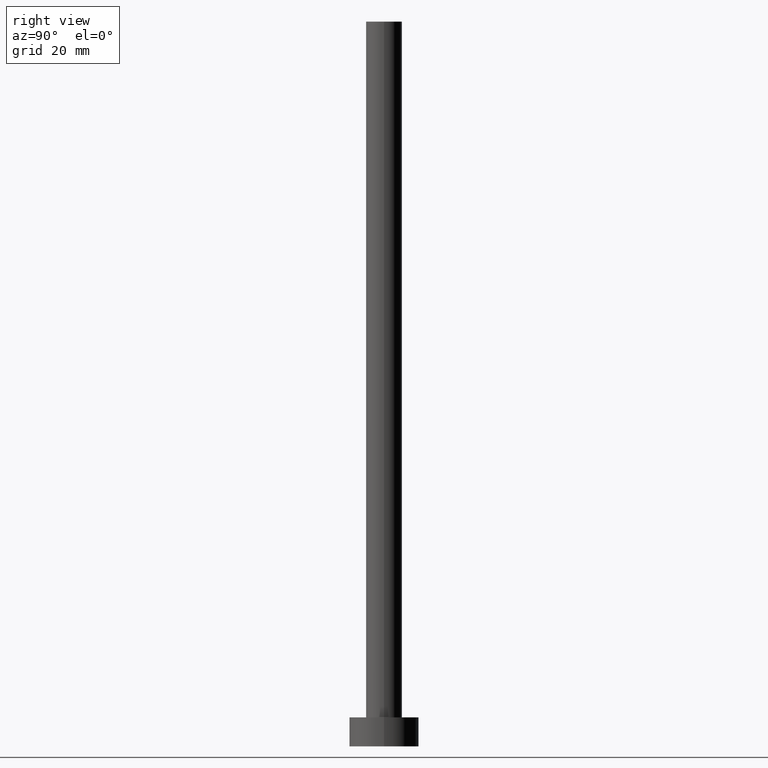
[diagram: clean part render]
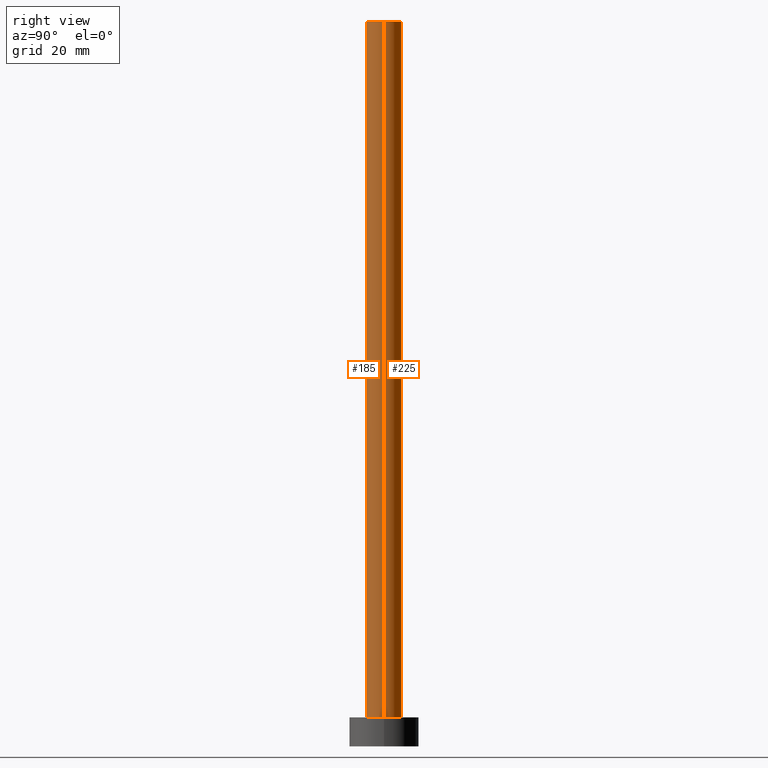
[diagram: same view with one multi-face feature highlighted, each face labeled with its STEP entity id]
A machine part, right view. The highlighted faces form ONE feature: a constant-radius fillet chain: 2 tangent blend faces with common blend radius 3.1 mm. The faces share edges in the B-rep.
Their STEP definitions:
[1] entity #225 (Cylinder):
#2 = CIRCLE ( 'NONE', #139, 3.100000000000000089 ) ;
#8 = LINE ( 'NONE', #80, #126 ) ;
#11 = CARTESIAN_POINT ( 'NONE',  ( 0.000000000000000000, 0.000000000000000000, 125.0000000000000000 ) ) ;
#25 = VECTOR ( 'NONE', #202, 1000.000000000000000 ) ;
#38 = CARTESIAN_POINT ( 'NONE',  ( 0.000000000000000000, 0.000000000000000000, 5.000000000000000000 ) ) ;
#39 = CARTESIAN_POINT ( 'NONE',  ( 3.100000000000000089, 3.796405077356794918E-16, 5.000000000000000000 ) ) ;
#41 = CYLINDRICAL_SURFACE ( 'NONE', #119, 3.100000000000000089 ) ;
#43 = CARTESIAN_POINT ( 'NONE',  ( -3.100000000000000089, 0.000000000000000000, 5.000000000000000000 ) ) ;
#45 = DIRECTION ( 'NONE',  ( 0.000000000000000000, 0.000000000000000000, 1.000000000000000000 ) ) ;
#54 = ORIENTED_EDGE ( 'NONE', *, *, #147, .T. ) ;
#58 = DIRECTION ( 'NONE',  ( -0.000000000000000000, -0.000000000000000000, -1.000000000000000000 ) ) ;
#63 = ORIENTED_EDGE ( 'NONE', *, *, #81, .T. ) ;
#73 = AXIS2_PLACEMENT_3D ( 'NONE', #38, #219, #113 ) ;
#74 = VERTEX_POINT ( 'NONE', #196 ) ;
#80 = CARTESIAN_POINT ( 'NONE',  ( 3.100000000000000089, 3.796405077356794918E-16, 125.0000000000000000 ) ) ;
#81 = EDGE_CURVE ( 'NONE', #87, #197, #234, .T. ) ;
#82 = CARTESIAN_POINT ( 'NONE',  ( -3.100000000000000089, 0.000000000000000000, 125.0000000000000000 ) ) ;
#87 = VERTEX_POINT ( 'NONE', #39 ) ;
#105 = EDGE_LOOP ( 'NONE', ( #110, #54, #63, #149 ) ) ;
#110 = ORIENTED_EDGE ( 'NONE', *, *, #141, .F. ) ;
#113 = DIRECTION ( 'NONE',  ( 1.000000000000000000, 0.000000000000000000, 0.000000000000000000 ) ) ;
#119 = AXIS2_PLACEMENT_3D ( 'NONE', #11, #135, #242 ) ;
#126 = VECTOR ( 'NONE', #58, 1000.000000000000000 ) ;
#135 = DIRECTION ( 'NONE',  ( -0.000000000000000000, -0.000000000000000000, -1.000000000000000000 ) ) ;
#137 = CARTESIAN_POINT ( 'NONE',  ( 0.000000000000000000, 0.000000000000000000, 125.0000000000000000 ) ) ;
#138 = FACE_OUTER_BOUND ( 'NONE', #105, .T. ) ;
#139 = AXIS2_PLACEMENT_3D ( 'NONE', #137, #45, #223 ) ;
#141 = EDGE_CURVE ( 'NONE', #74, #186, #2, .T. ) ;
#147 = EDGE_CURVE ( 'NONE', #74, #87, #8, .T. ) ;
#149 = ORIENTED_EDGE ( 'NONE', *, *, #229, .F. ) ;
#181 = LINE ( 'NONE', #82, #25 ) ;
#186 = VERTEX_POINT ( 'NONE', #221 ) ;
#196 = CARTESIAN_POINT ( 'NONE',  ( 3.100000000000000089, 3.796405077356794918E-16, 125.0000000000000000 ) ) ;
#197 = VERTEX_POINT ( 'NONE', #43 ) ;
#202 = DIRECTION ( 'NONE',  ( -0.000000000000000000, -0.000000000000000000, -1.000000000000000000 ) ) ;
#219 = DIRECTION ( 'NONE',  ( 0.000000000000000000, 0.000000000000000000, 1.000000000000000000 ) ) ;
#221 = CARTESIAN_POINT ( 'NONE',  ( -3.100000000000000089, 0.000000000000000000, 125.0000000000000000 ) ) ;
#223 = DIRECTION ( 'NONE',  ( 1.000000000000000000, 0.000000000000000000, 0.000000000000000000 ) ) ;
#225 = ADVANCED_FACE ( 'NONE', ( #138 ), #41, .T. ) ;
#229 = EDGE_CURVE ( 'NONE', #186, #197, #181, .T. ) ;
#234 = CIRCLE ( 'NONE', #73, 3.100000000000000089 ) ;
#242 = DIRECTION ( 'NONE',  ( -1.000000000000000000, 0.000000000000000000, 0.000000000000000000 ) ) ;
[2] entity #185 (Cylinder):
#8 = LINE ( 'NONE', #80, #126 ) ;
#25 = VECTOR ( 'NONE', #202, 1000.000000000000000 ) ;
#36 = ORIENTED_EDGE ( 'NONE', *, *, #55, .F. ) ;
#39 = CARTESIAN_POINT ( 'NONE',  ( 3.100000000000000089, 3.796405077356794918E-16, 5.000000000000000000 ) ) ;
#43 = CARTESIAN_POINT ( 'NONE',  ( -3.100000000000000089, 0.000000000000000000, 5.000000000000000000 ) ) ;
#51 = ORIENTED_EDGE ( 'NONE', *, *, #229, .T. ) ;
#52 = DIRECTION ( 'NONE',  ( 0.000000000000000000, 0.000000000000000000, 1.000000000000000000 ) ) ;
#55 = EDGE_CURVE ( 'NONE', #186, #74, #203, .T. ) ;
#58 = DIRECTION ( 'NONE',  ( -0.000000000000000000, -0.000000000000000000, -1.000000000000000000 ) ) ;
#68 = DIRECTION ( 'NONE',  ( 1.000000000000000000, 0.000000000000000000, 0.000000000000000000 ) ) ;
#74 = VERTEX_POINT ( 'NONE', #196 ) ;
#80 = CARTESIAN_POINT ( 'NONE',  ( 3.100000000000000089, 3.796405077356794918E-16, 125.0000000000000000 ) ) ;
#82 = CARTESIAN_POINT ( 'NONE',  ( -3.100000000000000089, 0.000000000000000000, 125.0000000000000000 ) ) ;
#87 = VERTEX_POINT ( 'NONE', #39 ) ;
#93 = FACE_OUTER_BOUND ( 'NONE', #176, .T. ) ;
#98 = DIRECTION ( 'NONE',  ( -0.000000000000000000, -0.000000000000000000, -1.000000000000000000 ) ) ;
#102 = AXIS2_PLACEMENT_3D ( 'NONE', #118, #98, #133 ) ;
#118 = CARTESIAN_POINT ( 'NONE',  ( 0.000000000000000000, 0.000000000000000000, 125.0000000000000000 ) ) ;
#126 = VECTOR ( 'NONE', #58, 1000.000000000000000 ) ;
#129 = ORIENTED_EDGE ( 'NONE', *, *, #147, .F. ) ;
#133 = DIRECTION ( 'NONE',  ( -1.000000000000000000, 0.000000000000000000, 0.000000000000000000 ) ) ;
#147 = EDGE_CURVE ( 'NONE', #74, #87, #8, .T. ) ;
#161 = DIRECTION ( 'NONE',  ( 1.000000000000000000, 0.000000000000000000, 0.000000000000000000 ) ) ;
#176 = EDGE_LOOP ( 'NONE', ( #129, #36, #51, #231 ) ) ;
#177 = EDGE_CURVE ( 'NONE', #197, #87, #195, .T. ) ;
#181 = LINE ( 'NONE', #82, #25 ) ;
#185 = ADVANCED_FACE ( 'NONE', ( #93 ), #198, .T. ) ;
#186 = VERTEX_POINT ( 'NONE', #221 ) ;
#191 = AXIS2_PLACEMENT_3D ( 'NONE', #211, #52, #68 ) ;
#195 = CIRCLE ( 'NONE', #205, 3.100000000000000089 ) ;
#196 = CARTESIAN_POINT ( 'NONE',  ( 3.100000000000000089, 3.796405077356794918E-16, 125.0000000000000000 ) ) ;
#197 = VERTEX_POINT ( 'NONE', #43 ) ;
#198 = CYLINDRICAL_SURFACE ( 'NONE', #102, 3.100000000000000089 ) ;
#202 = DIRECTION ( 'NONE',  ( -0.000000000000000000, -0.000000000000000000, -1.000000000000000000 ) ) ;
#203 = CIRCLE ( 'NONE', #191, 3.100000000000000089 ) ;
#204 = DIRECTION ( 'NONE',  ( 0.000000000000000000, 0.000000000000000000, 1.000000000000000000 ) ) ;
#205 = AXIS2_PLACEMENT_3D ( 'NONE', #238, #204, #161 ) ;
#211 = CARTESIAN_POINT ( 'NONE',  ( 0.000000000000000000, 0.000000000000000000, 125.0000000000000000 ) ) ;
#221 = CARTESIAN_POINT ( 'NONE',  ( -3.100000000000000089, 0.000000000000000000, 125.0000000000000000 ) ) ;
#229 = EDGE_CURVE ( 'NONE', #186, #197, #181, .T. ) ;
#231 = ORIENTED_EDGE ( 'NONE', *, *, #177, .T. ) ;
#238 = CARTESIAN_POINT ( 'NONE',  ( 0.000000000000000000, 0.000000000000000000, 5.000000000000000000 ) ) ;